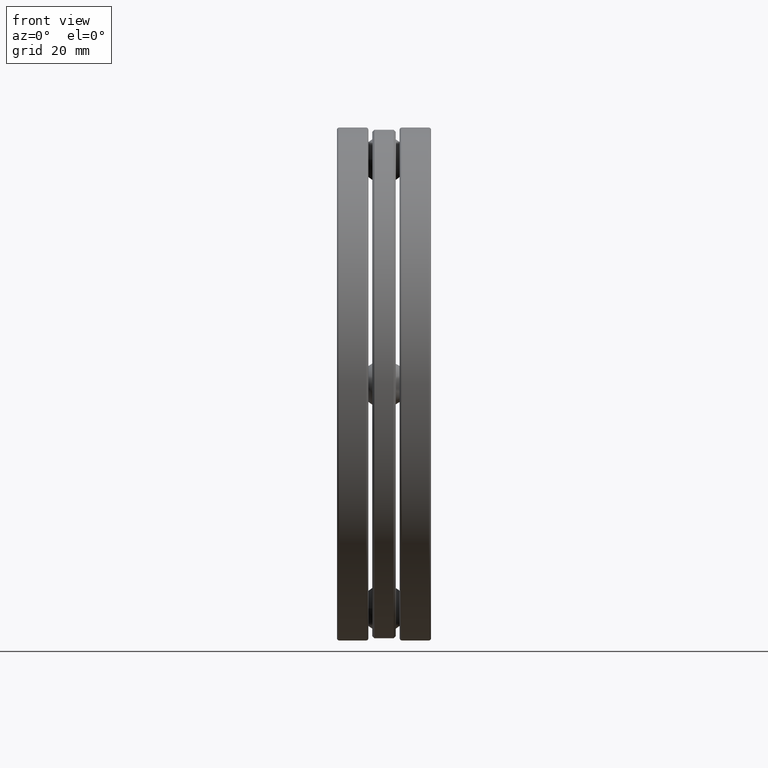
[diagram: clean part render]
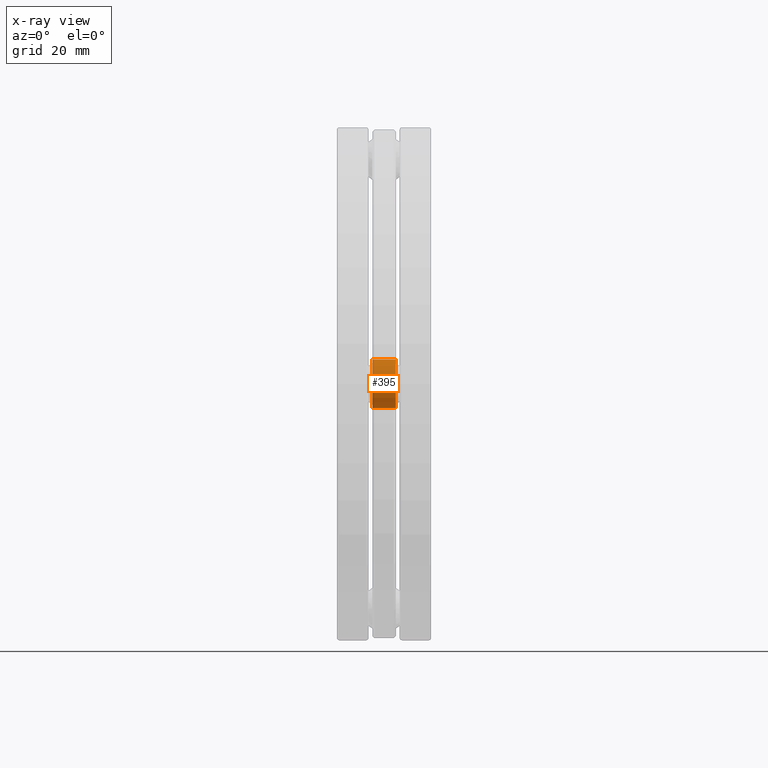
[diagram: x-ray — body ghosted, one internal face saturated and labeled with its STEP entity id]
A machine part, front view, then the same camera in x-ray: the body is ghosted and one INTERNAL B-rep face — a face not visible from any outside direction — is saturated and labeled: STEP entity #395.
In plain terms, the highlighted cylindrical surface (bore or boss wall) has radius 5.6896 mm, axis along (1, -0, -0).
Its self-contained STEP definition (entity closure, byte-faithful):
#9 = CIRCLE ( 'NONE', #95, 0.2240000000000006200 ) ;
#49 = VERTEX_POINT ( 'NONE', #424 ) ;
#67 = CYLINDRICAL_SURFACE ( 'NONE', #431, 0.2240000000000006200 ) ;
#77 = CARTESIAN_POINT ( 'NONE',  ( -0.1082500000000000000, 2.066749999999999900, 0.0000000000000000000 ) ) ;
#95 = AXIS2_PLACEMENT_3D ( 'NONE', #77, #599, #709 ) ;
#116 = DIRECTION ( 'NONE',  ( 1.000000000000000000, -0.0000000000000000000, 0.0000000000000000000 ) ) ;
#168 = EDGE_CURVE ( 'NONE', #774, #774, #651, .T. ) ;
#178 = CARTESIAN_POINT ( 'NONE',  ( 0.1082500000000000100, 2.066749999999999900, 0.0000000000000000000 ) ) ;
#242 = DIRECTION ( 'NONE',  ( 0.0000000000000000000, 0.0000000000000000000, -1.000000000000000000 ) ) ;
#324 = EDGE_LOOP ( 'NONE', ( #372 ) ) ;
#325 = DIRECTION ( 'NONE',  ( 1.000000000000000000, -0.0000000000000000000, -0.0000000000000000000 ) ) ;
#372 = ORIENTED_EDGE ( 'NONE', *, *, #450, .T. ) ;
#395 = ADVANCED_FACE ( 'NONE', ( #605, #546 ), #67, .F. ) ;
#408 = AXIS2_PLACEMENT_3D ( 'NONE', #178, #116, #242 ) ;
#424 = CARTESIAN_POINT ( 'NONE',  ( -0.1082500000000000000, 2.066749999999999900, -0.2240000000000006200 ) ) ;
#431 = AXIS2_PLACEMENT_3D ( 'NONE', #759, #325, #585 ) ;
#450 = EDGE_CURVE ( 'NONE', #49, #49, #9, .T. ) ;
#493 = CARTESIAN_POINT ( 'NONE',  ( 0.1082500000000000100, 2.066749999999999900, -0.2240000000000006200 ) ) ;
#535 = ORIENTED_EDGE ( 'NONE', *, *, #168, .T. ) ;
#546 = FACE_OUTER_BOUND ( 'NONE', #324, .T. ) ;
#585 = DIRECTION ( 'NONE',  ( 0.0000000000000000000, 0.0000000000000000000, -1.000000000000000000 ) ) ;
#599 = DIRECTION ( 'NONE',  ( -1.000000000000000000, -0.0000000000000000000, -0.0000000000000000000 ) ) ;
#605 = FACE_OUTER_BOUND ( 'NONE', #781, .T. ) ;
#651 = CIRCLE ( 'NONE', #408, 0.2240000000000006200 ) ;
#709 = DIRECTION ( 'NONE',  ( 0.0000000000000000000, 0.0000000000000000000, -1.000000000000000000 ) ) ;
#759 = CARTESIAN_POINT ( 'NONE',  ( -0.4330393700787400500, 2.066749999999999900, 0.0000000000000000000 ) ) ;
#774 = VERTEX_POINT ( 'NONE', #493 ) ;
#781 = EDGE_LOOP ( 'NONE', ( #535 ) ) ;